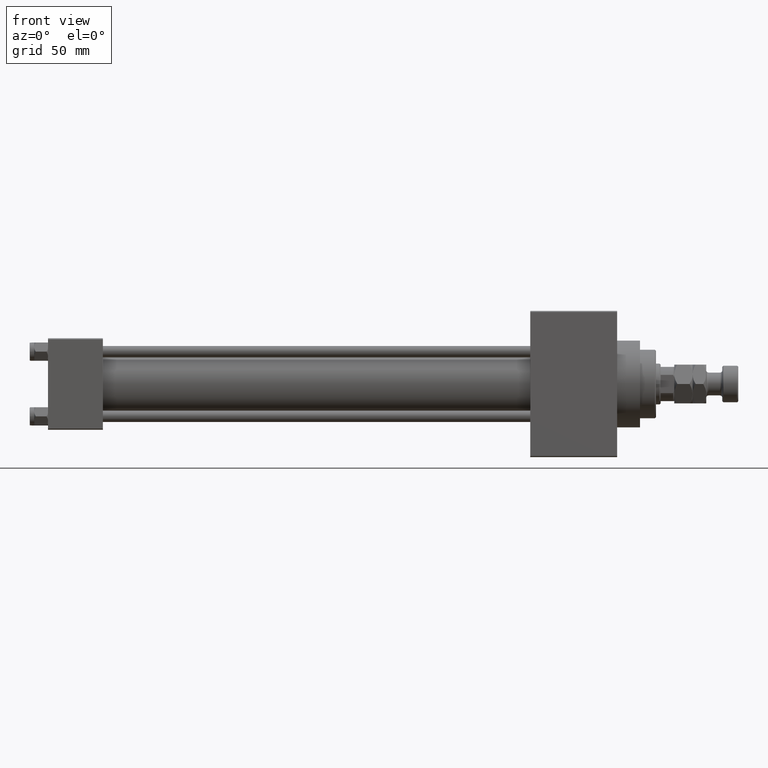
[diagram: clean part render]
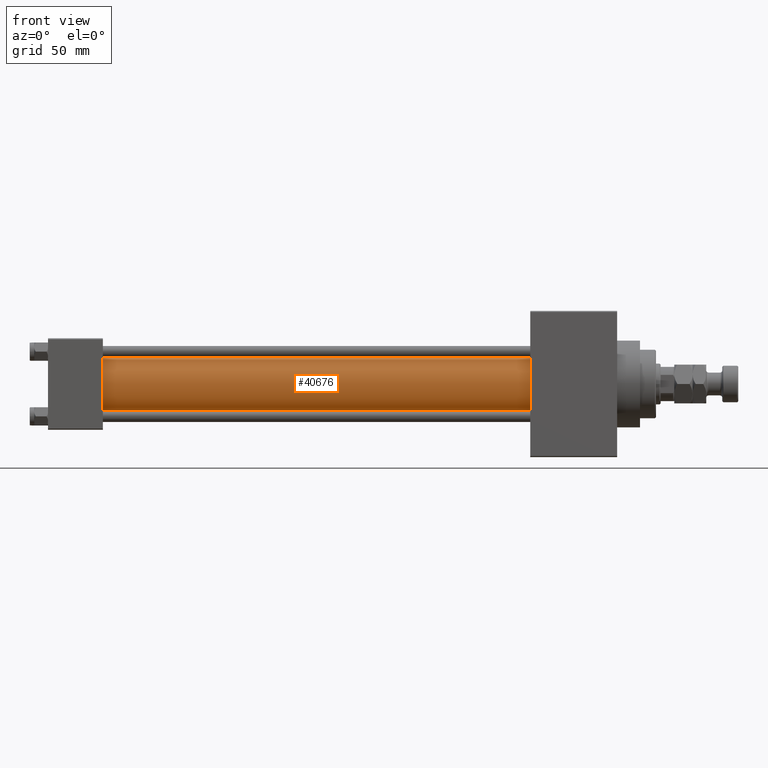
[diagram: same view with one face highlighted and labeled with its STEP entity id]
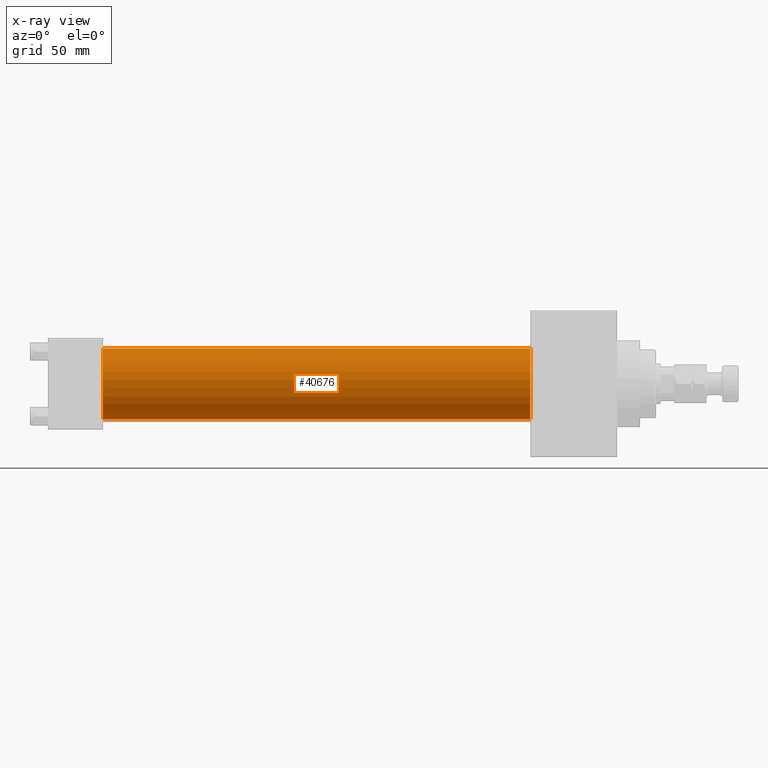
[diagram: x-ray of the same camera — body ghosted, the highlighted face saturated]
A machine part, front view. The second image highlights one B-rep face of the part: STEP entity #40676.
The next image is the same camera in x-ray: the body ghosted, the highlighted face saturated — about 0% of this face is hidden behind the body in this view.
In plain terms, the highlighted cylindrical surface (edge-blend (fillet) strip) has radius 15.5 mm, axis along (-1, -0, -0).
Its self-contained STEP definition (entity closure, byte-faithful):
#3832 = CARTESIAN_POINT ( 'NONE',  ( 211.0000000000000000, -2.602085213965210642E-15, 0.000000000000000000 ) ) ;
#4056 = DIRECTION ( 'NONE',  ( -1.000000000000000000, -0.000000000000000000, -0.000000000000000000 ) ) ;
#6328 = LINE ( 'NONE', #17854, #44227 ) ;
#9562 = EDGE_CURVE ( 'NONE', #23396, #30581, #11275, .T. ) ;
#9575 = CIRCLE ( 'NONE', #12020, 15.50000000000000000 ) ;
#11275 = CIRCLE ( 'NONE', #44016, 15.50000000000000000 ) ;
#12020 = AXIS2_PLACEMENT_3D ( 'NONE', #15107, #27163, #42295 ) ;
#14139 = DIRECTION ( 'NONE',  ( 0.000000000000000000, 0.000000000000000000, 1.000000000000000000 ) ) ;
#15107 = CARTESIAN_POINT ( 'NONE',  ( 211.0000000000000000, -2.602085213965210642E-15, 0.000000000000000000 ) ) ;
#16247 = ORIENTED_EDGE ( 'NONE', *, *, #37472, .F. ) ;
#17843 = CARTESIAN_POINT ( 'NONE',  ( 23.99999999999999289, -2.602085213965210642E-15, 15.50000000000000000 ) ) ;
#17854 = CARTESIAN_POINT ( 'NONE',  ( 211.0000000000000000, -2.602085213965210642E-15, 15.50000000000000000 ) ) ;
#19942 = FACE_OUTER_BOUND ( 'NONE', #27693, .T. ) ;
#20410 = LINE ( 'NONE', #35816, #36952 ) ;
#21459 = CARTESIAN_POINT ( 'NONE',  ( 211.0000000000000000, -2.602085213965210642E-15, 15.50000000000000000 ) ) ;
#21892 = CARTESIAN_POINT ( 'NONE',  ( 23.99999999999999289, -7.038826752868131828E-16, -15.50000000000000000 ) ) ;
#21970 = VERTEX_POINT ( 'NONE', #21459 ) ;
#23259 = EDGE_CURVE ( 'NONE', #25582, #30581, #20410, .T. ) ;
#23396 = VERTEX_POINT ( 'NONE', #17843 ) ;
#25582 = VERTEX_POINT ( 'NONE', #29847 ) ;
#27163 = DIRECTION ( 'NONE',  ( 1.000000000000000000, 0.000000000000000000, 0.000000000000000000 ) ) ;
#27693 = EDGE_LOOP ( 'NONE', ( #43096, #16247, #32634, #36511 ) ) ;
#29847 = CARTESIAN_POINT ( 'NONE',  ( 211.0000000000000000, -7.038826752868131828E-16, -15.50000000000000000 ) ) ;
#30581 = VERTEX_POINT ( 'NONE', #21892 ) ;
#31254 = DIRECTION ( 'NONE',  ( -1.000000000000000000, -0.000000000000000000, -0.000000000000000000 ) ) ;
#32634 = ORIENTED_EDGE ( 'NONE', *, *, #46200, .T. ) ;
#34844 = CYLINDRICAL_SURFACE ( 'NONE', #39970, 15.50000000000000000 ) ;
#35816 = CARTESIAN_POINT ( 'NONE',  ( 211.0000000000000000, -7.038826752868131828E-16, -15.50000000000000000 ) ) ;
#36511 = ORIENTED_EDGE ( 'NONE', *, *, #9562, .T. ) ;
#36514 = CARTESIAN_POINT ( 'NONE',  ( 23.99999999999999289, -2.602085213965210642E-15, 0.000000000000000000 ) ) ;
#36952 = VECTOR ( 'NONE', #4056, 1000.000000000000000 ) ;
#37472 = EDGE_CURVE ( 'NONE', #21970, #25582, #9575, .T. ) ;
#39970 = AXIS2_PLACEMENT_3D ( 'NONE', #3832, #31254, #46913 ) ;
#40106 = DIRECTION ( 'NONE',  ( 1.000000000000000000, 0.000000000000000000, 0.000000000000000000 ) ) ;
#40676 = ADVANCED_FACE ( 'NONE', ( #19942 ), #34844, .T. ) ;
#42295 = DIRECTION ( 'NONE',  ( 0.000000000000000000, 0.000000000000000000, -1.000000000000000000 ) ) ;
#43096 = ORIENTED_EDGE ( 'NONE', *, *, #23259, .F. ) ;
#44016 = AXIS2_PLACEMENT_3D ( 'NONE', #36514, #40106, #14139 ) ;
#44227 = VECTOR ( 'NONE', #45312, 1000.000000000000000 ) ;
#45312 = DIRECTION ( 'NONE',  ( -1.000000000000000000, -0.000000000000000000, -0.000000000000000000 ) ) ;
#46200 = EDGE_CURVE ( 'NONE', #21970, #23396, #6328, .T. ) ;
#46913 = DIRECTION ( 'NONE',  ( 0.000000000000000000, 0.000000000000000000, 1.000000000000000000 ) ) ;